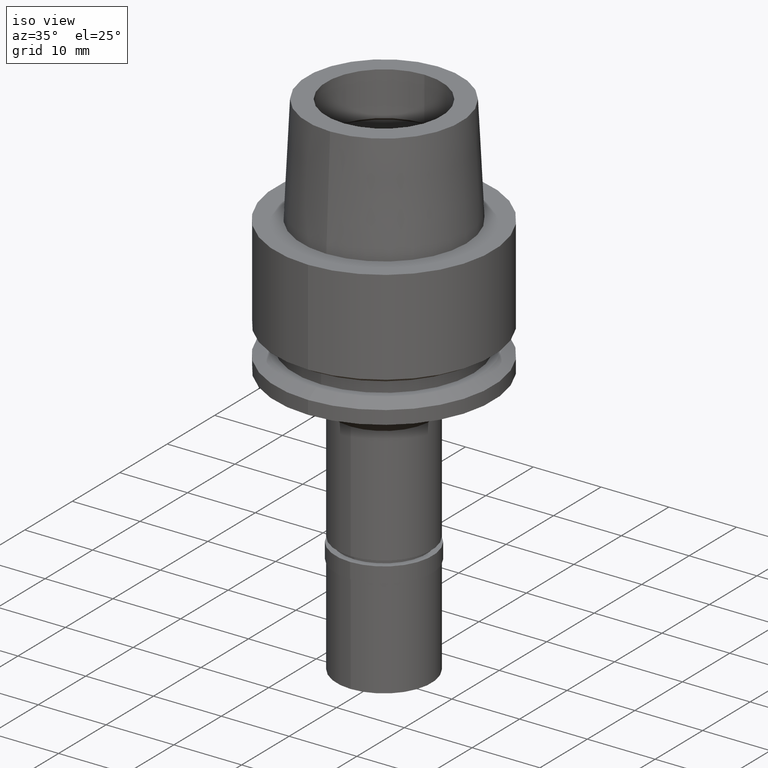
[diagram: clean part render]
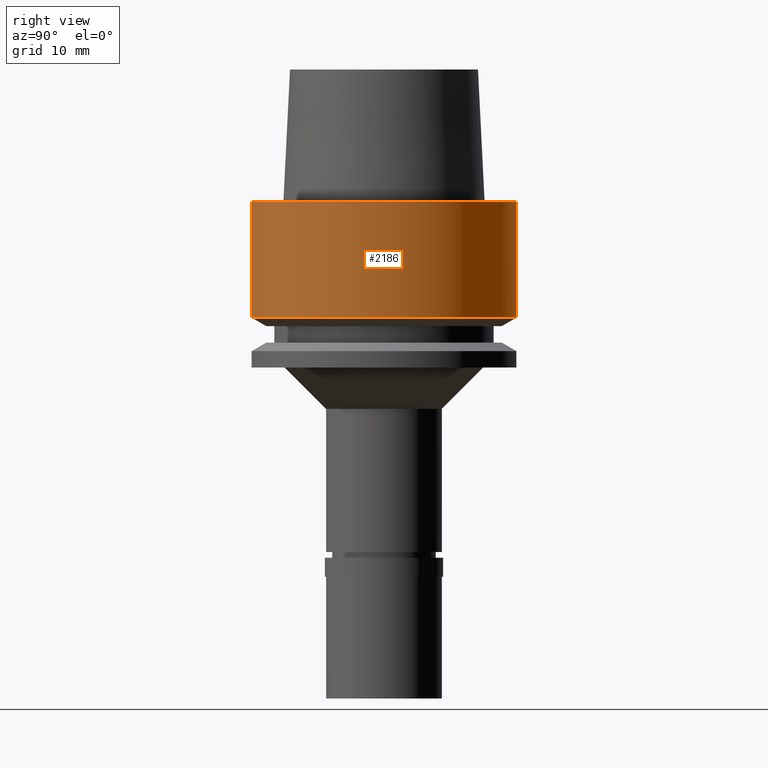
[diagram: tour spotlight — one face highlighted and labeled with its STEP entity id]
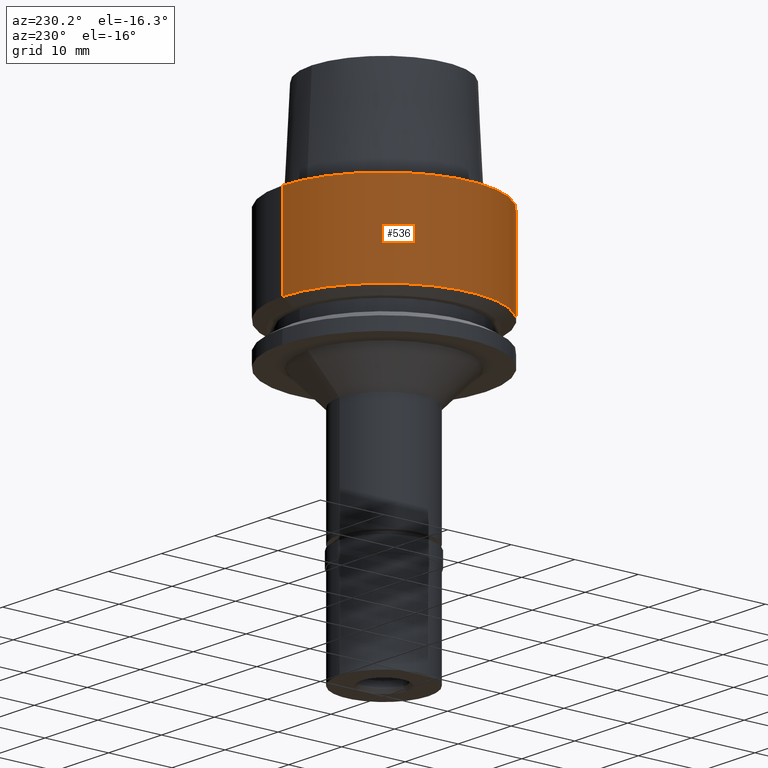
[diagram: tour spotlight — one face highlighted and labeled with its STEP entity id]
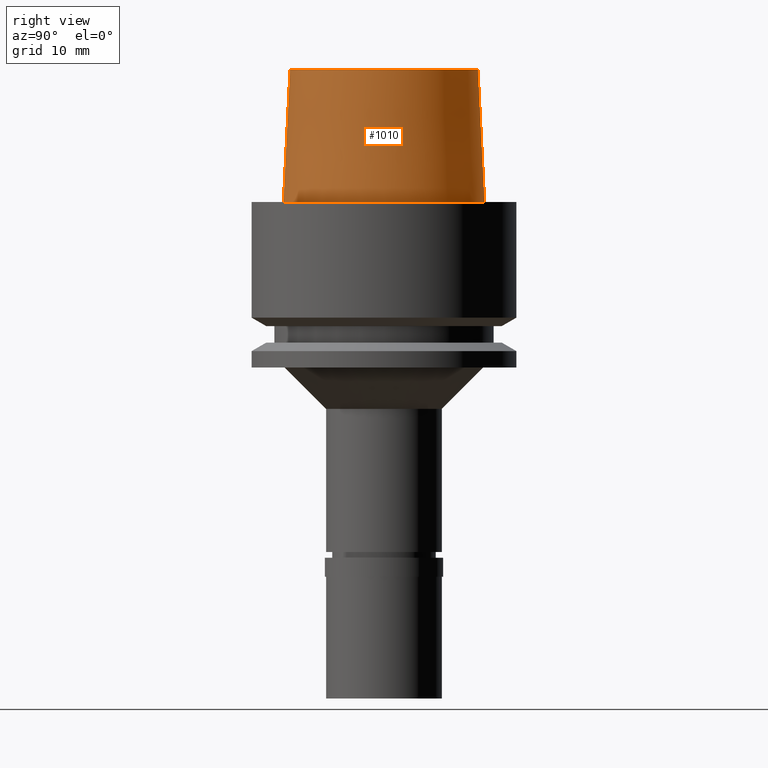
[diagram: tour spotlight — one face highlighted and labeled with its STEP entity id]
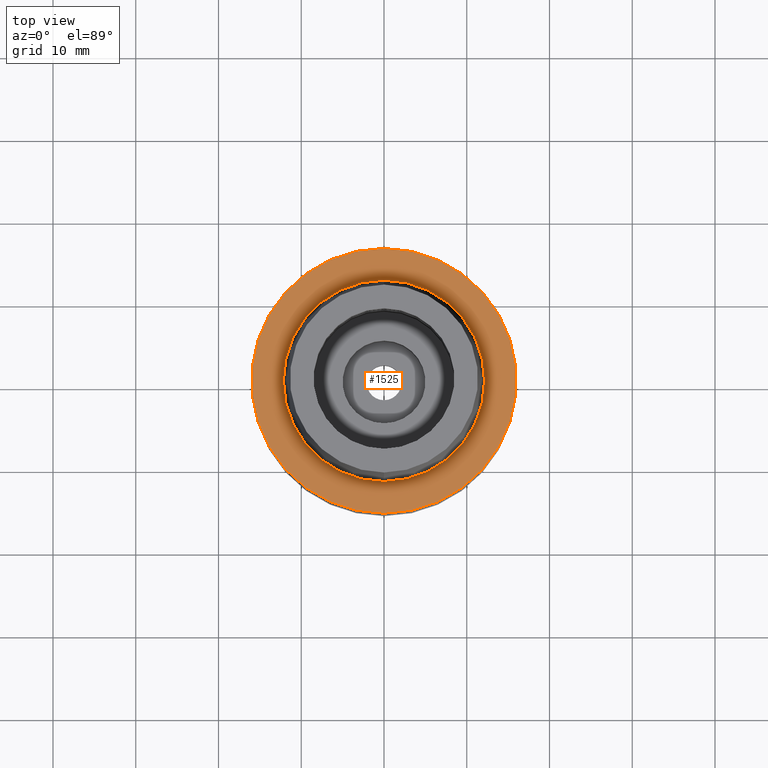
[diagram: tour spotlight — one face highlighted and labeled with its STEP entity id]
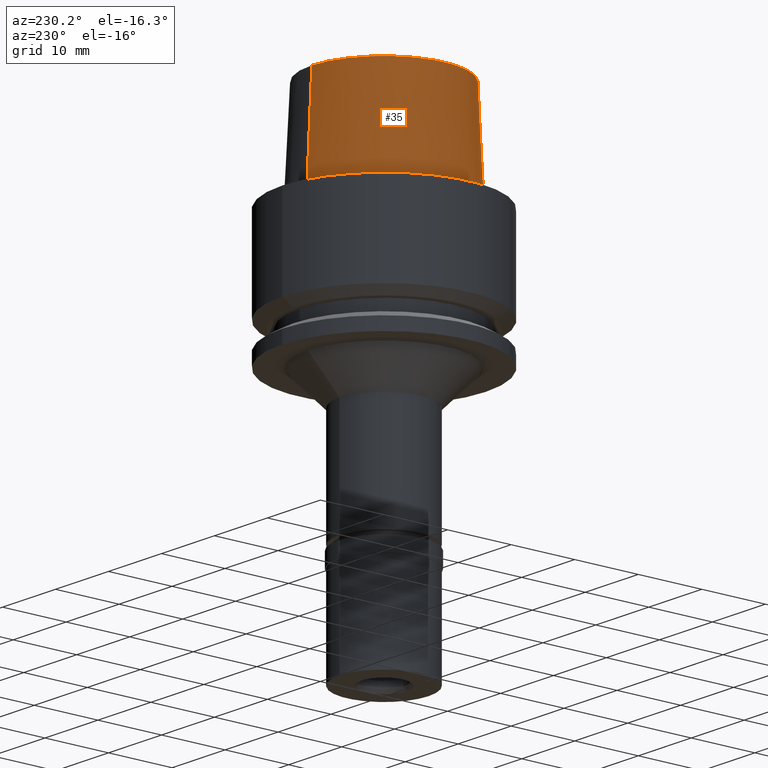
[diagram: tour spotlight — one face highlighted and labeled with its STEP entity id]
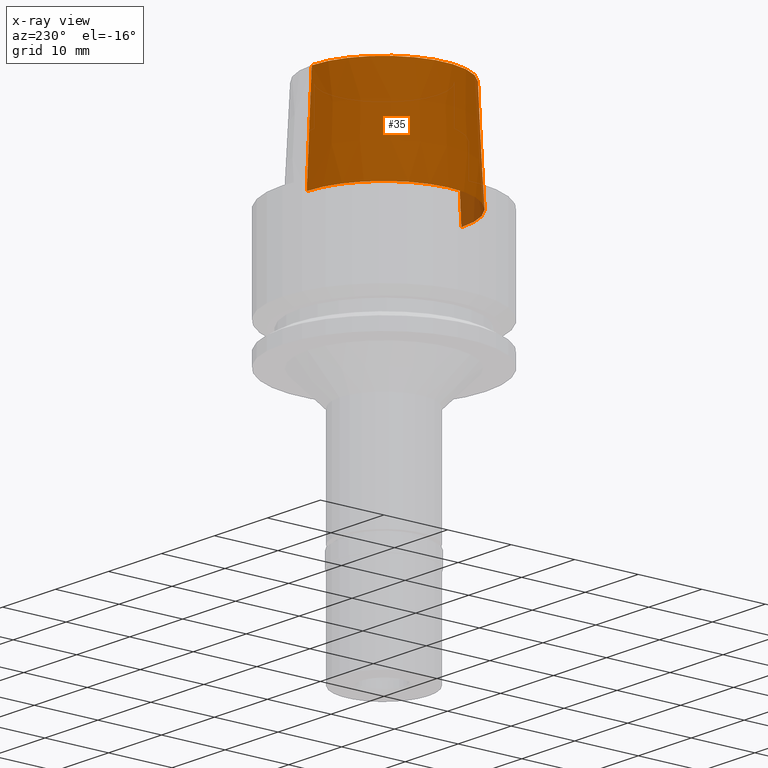
[diagram: x-ray of the same camera — body ghosted, this tour face saturated]
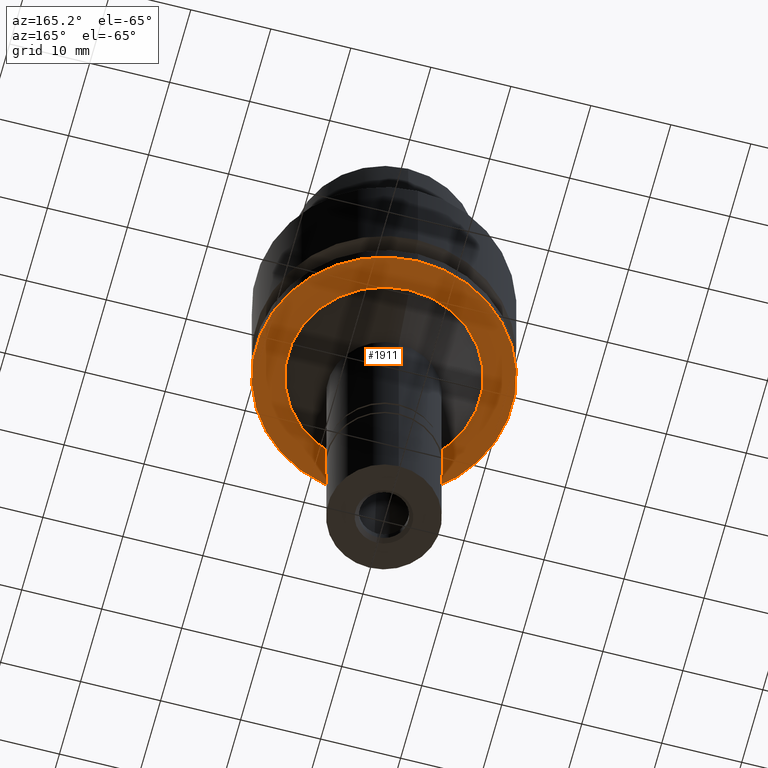
[diagram: tour spotlight — one face highlighted and labeled with its STEP entity id]
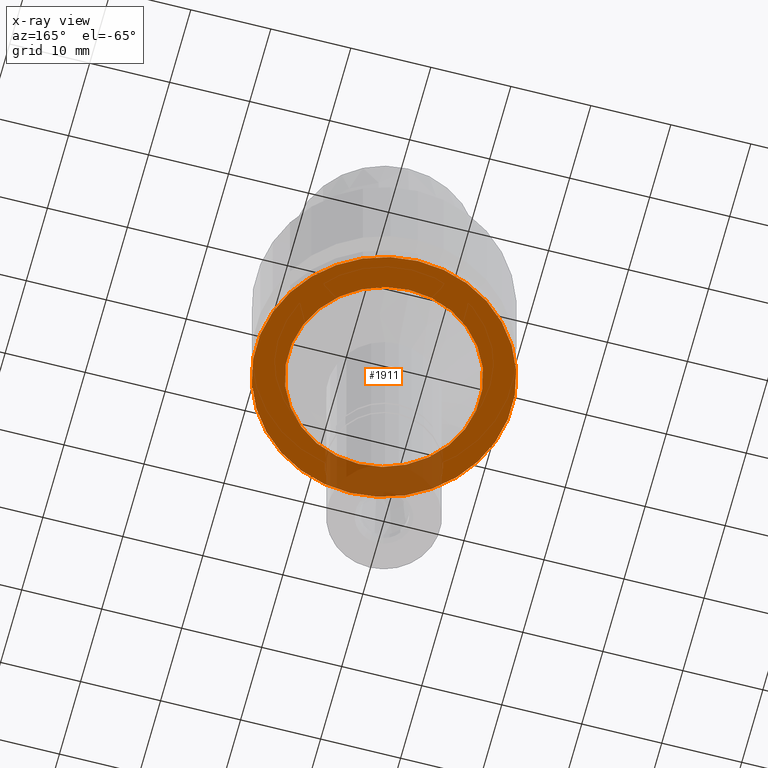
[diagram: x-ray of the same camera — body ghosted, this tour face saturated]
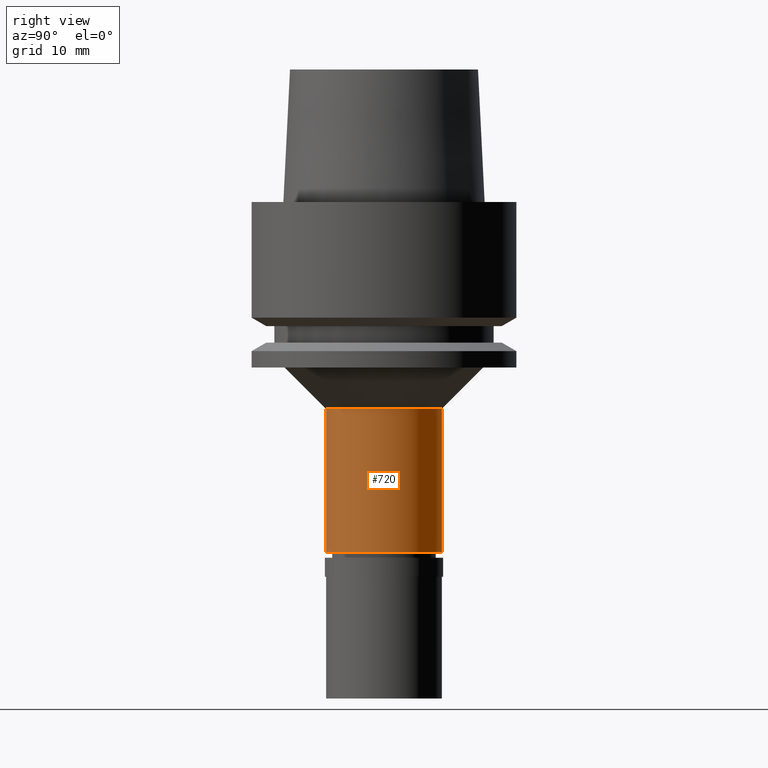
[diagram: tour spotlight — one face highlighted and labeled with its STEP entity id]
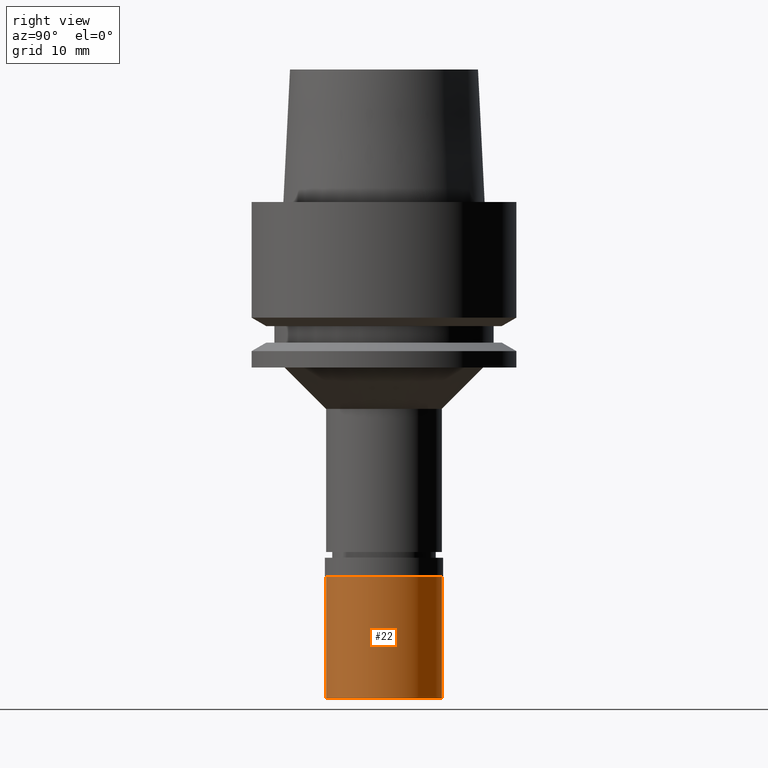
[diagram: tour spotlight — one face highlighted and labeled with its STEP entity id]
A machine part: a face-by-face anatomy tour. The part has 74 B-rep faces; the first image is the clean iso view, then the 8 largest visible faces are spotlighted one at a time (largest first), each with its STEP entity span.

Face 1 — right view, entity #2186. In plain terms, the highlighted cylindrical surface (partial cylindrical patch) has radius 16 mm, axis along (0, 0, 1).
Definition (entity closure, byte-faithful):
#188 = CARTESIAN_POINT ( 'NONE',  ( 0.0000000000000000000, 0.0000000000000000000, -13.97927405783999966 ) ) ;
#216 = DIRECTION ( 'NONE',  ( 0.0000000000000000000, 0.0000000000000000000, 1.000000000000000000 ) ) ;
#342 = CARTESIAN_POINT ( 'NONE',  ( 0.0000000000000000000, 0.0000000000000000000, -7.815970093360999808E-14 ) ) ;
#360 = CIRCLE ( 'NONE', #757, 16.00000000000000000 ) ;
#395 = DIRECTION ( 'NONE',  ( 0.0000000000000000000, 1.000000000000000000, 0.0000000000000000000 ) ) ;
#399 = EDGE_CURVE ( 'NONE', #2251, #1032, #2132, .T. ) ;
#509 = VERTEX_POINT ( 'NONE', #1955 ) ;
#526 = ORIENTED_EDGE ( 'NONE', *, *, #719, .T. ) ;
#706 = VECTOR ( 'NONE', #836, 1000.000000000000000 ) ;
#719 = EDGE_CURVE ( 'NONE', #509, #2251, #1167, .T. ) ;
#752 = ORIENTED_EDGE ( 'NONE', *, *, #2339, .F. ) ;
#757 = AXIS2_PLACEMENT_3D ( 'NONE', #188, #2459, #1883 ) ;
#836 = DIRECTION ( 'NONE',  ( 0.0000000000000000000, -6.772870976582999535E-14, -1.000000000000000000 ) ) ;
#1016 = FACE_OUTER_BOUND ( 'NONE', #2158, .T. ) ;
#1032 = VERTEX_POINT ( 'NONE', #1664 ) ;
#1044 = CYLINDRICAL_SURFACE ( 'NONE', #1094, 16.00000000000000000 ) ;
#1094 = AXIS2_PLACEMENT_3D ( 'NONE', #2488, #216, #395 ) ;
#1104 = ORIENTED_EDGE ( 'NONE', *, *, #399, .T. ) ;
#1167 = CIRCLE ( 'NONE', #1382, 16.00000000000000000 ) ;
#1306 = CARTESIAN_POINT ( 'NONE',  ( 0.0000000000000000000, 16.00000000000000000, -13.97927405783999966 ) ) ;
#1307 = DIRECTION ( 'NONE',  ( 0.0000000000000000000, 6.772870976582999535E-14, -1.000000000000000000 ) ) ;
#1382 = AXIS2_PLACEMENT_3D ( 'NONE', #342, #1412, #1862 ) ;
#1385 = VECTOR ( 'NONE', #1307, 1000.000000000000000 ) ;
#1412 = DIRECTION ( 'NONE',  ( 0.0000000000000000000, 0.0000000000000000000, -1.000000000000000000 ) ) ;
#1536 = VERTEX_POINT ( 'NONE', #1306 ) ;
#1664 = CARTESIAN_POINT ( 'NONE',  ( 0.0000000000000000000, -16.00000000000000000, -13.97927405783999966 ) ) ;
#1697 = CARTESIAN_POINT ( 'NONE',  ( 0.0000000000000000000, -16.00000000000000000, -7.815970093360999808E-14 ) ) ;
#1862 = DIRECTION ( 'NONE',  ( 0.0000000000000000000, 1.000000000000000000, 0.0000000000000000000 ) ) ;
#1883 = DIRECTION ( 'NONE',  ( 0.0000000000000000000, -1.000000000000000000, 0.0000000000000000000 ) ) ;
#1895 = CARTESIAN_POINT ( 'NONE',  ( 0.0000000000000000000, -16.00000000000000000, -5.210646728906999149E-14 ) ) ;
#1955 = CARTESIAN_POINT ( 'NONE',  ( 0.0000000000000000000, 16.00000000000000000, -7.815970093360999808E-14 ) ) ;
#2109 = LINE ( 'NONE', #2556, #706 ) ;
#2132 = LINE ( 'NONE', #1895, #1385 ) ;
#2158 = EDGE_LOOP ( 'NONE', ( #526, #1104, #2477, #752 ) ) ;
#2186 = ADVANCED_FACE ( 'NONE', ( #1016 ), #1044, .T. ) ;
#2251 = VERTEX_POINT ( 'NONE', #1697 ) ;
#2275 = EDGE_CURVE ( 'NONE', #1032, #1536, #360, .T. ) ;
#2339 = EDGE_CURVE ( 'NONE', #509, #1536, #2109, .T. ) ;
#2459 = DIRECTION ( 'NONE',  ( 0.0000000000000000000, 0.0000000000000000000, 1.000000000000000000 ) ) ;
#2477 = ORIENTED_EDGE ( 'NONE', *, *, #2275, .T. ) ;
#2488 = CARTESIAN_POINT ( 'NONE',  ( 0.0000000000000000000, 0.0000000000000000000, -59.60000000000000142 ) ) ;
#2556 = CARTESIAN_POINT ( 'NONE',  ( 0.0000000000000000000, 16.00000000000000000, -5.210646728906999149E-14 ) ) ;

Face 2 — auxiliary view, entity #536. In plain terms, the highlighted cylindrical surface (partial cylindrical patch) has radius 16 mm, axis along (0, 0, 1).
Definition (entity closure, byte-faithful):
#101 = CYLINDRICAL_SURFACE ( 'NONE', #2543, 16.00000000000000000 ) ;
#103 = AXIS2_PLACEMENT_3D ( 'NONE', #997, #2657, #1375 ) ;
#121 = EDGE_CURVE ( 'NONE', #2251, #509, #2506, .T. ) ;
#399 = EDGE_CURVE ( 'NONE', #2251, #1032, #2132, .T. ) ;
#415 = CIRCLE ( 'NONE', #2336, 16.00000000000000000 ) ;
#509 = VERTEX_POINT ( 'NONE', #1955 ) ;
#536 = ADVANCED_FACE ( 'NONE', ( #1121 ), #101, .T. ) ;
#706 = VECTOR ( 'NONE', #836, 1000.000000000000000 ) ;
#819 = DIRECTION ( 'NONE',  ( 0.0000000000000000000, 1.000000000000000000, 0.0000000000000000000 ) ) ;
#832 = ORIENTED_EDGE ( 'NONE', *, *, #399, .F. ) ;
#836 = DIRECTION ( 'NONE',  ( 0.0000000000000000000, -6.772870976582999535E-14, -1.000000000000000000 ) ) ;
#954 = DIRECTION ( 'NONE',  ( 0.0000000000000000000, 1.000000000000000000, 0.0000000000000000000 ) ) ;
#984 = ORIENTED_EDGE ( 'NONE', *, *, #2339, .T. ) ;
#997 = CARTESIAN_POINT ( 'NONE',  ( 0.0000000000000000000, 0.0000000000000000000, -7.815970093360999808E-14 ) ) ;
#1032 = VERTEX_POINT ( 'NONE', #1664 ) ;
#1121 = FACE_OUTER_BOUND ( 'NONE', #2138, .T. ) ;
#1214 = EDGE_CURVE ( 'NONE', #1536, #1032, #415, .T. ) ;
#1254 = ORIENTED_EDGE ( 'NONE', *, *, #1214, .T. ) ;
#1306 = CARTESIAN_POINT ( 'NONE',  ( 0.0000000000000000000, 16.00000000000000000, -13.97927405783999966 ) ) ;
#1307 = DIRECTION ( 'NONE',  ( 0.0000000000000000000, 6.772870976582999535E-14, -1.000000000000000000 ) ) ;
#1309 = ORIENTED_EDGE ( 'NONE', *, *, #121, .T. ) ;
#1375 = DIRECTION ( 'NONE',  ( 0.0000000000000000000, -1.000000000000000000, 0.0000000000000000000 ) ) ;
#1385 = VECTOR ( 'NONE', #1307, 1000.000000000000000 ) ;
#1536 = VERTEX_POINT ( 'NONE', #1306 ) ;
#1644 = DIRECTION ( 'NONE',  ( 0.0000000000000000000, 0.0000000000000000000, 1.000000000000000000 ) ) ;
#1664 = CARTESIAN_POINT ( 'NONE',  ( 0.0000000000000000000, -16.00000000000000000, -13.97927405783999966 ) ) ;
#1697 = CARTESIAN_POINT ( 'NONE',  ( 0.0000000000000000000, -16.00000000000000000, -7.815970093360999808E-14 ) ) ;
#1895 = CARTESIAN_POINT ( 'NONE',  ( 0.0000000000000000000, -16.00000000000000000, -5.210646728906999149E-14 ) ) ;
#1955 = CARTESIAN_POINT ( 'NONE',  ( 0.0000000000000000000, 16.00000000000000000, -7.815970093360999808E-14 ) ) ;
#2109 = LINE ( 'NONE', #2556, #706 ) ;
#2132 = LINE ( 'NONE', #1895, #1385 ) ;
#2138 = EDGE_LOOP ( 'NONE', ( #1254, #832, #1309, #984 ) ) ;
#2206 = CARTESIAN_POINT ( 'NONE',  ( 0.0000000000000000000, 0.0000000000000000000, -59.60000000000000142 ) ) ;
#2251 = VERTEX_POINT ( 'NONE', #1697 ) ;
#2261 = CARTESIAN_POINT ( 'NONE',  ( 0.0000000000000000000, 0.0000000000000000000, -13.97927405783999966 ) ) ;
#2336 = AXIS2_PLACEMENT_3D ( 'NONE', #2261, #1644, #819 ) ;
#2339 = EDGE_CURVE ( 'NONE', #509, #1536, #2109, .T. ) ;
#2506 = CIRCLE ( 'NONE', #103, 16.00000000000000000 ) ;
#2543 = AXIS2_PLACEMENT_3D ( 'NONE', #2206, #2557, #954 ) ;
#2556 = CARTESIAN_POINT ( 'NONE',  ( 0.0000000000000000000, 16.00000000000000000, -5.210646728906999149E-14 ) ) ;
#2557 = DIRECTION ( 'NONE',  ( 0.0000000000000000000, 0.0000000000000000000, 1.000000000000000000 ) ) ;
#2657 = DIRECTION ( 'NONE',  ( 0.0000000000000000000, 0.0000000000000000000, -1.000000000000000000 ) ) ;

Face 3 — right view, entity #1010. In plain terms, the highlighted conical surface has half-angle 2.862 deg.
Definition (entity closure, byte-faithful):
#144 = FACE_OUTER_BOUND ( 'NONE', #1313, .T. ) ;
#198 = CIRCLE ( 'NONE', #1557, 12.15999970738999991 ) ;
#269 = CARTESIAN_POINT ( 'NONE',  ( 0.0000000000000000000, 11.36000117044000035, 16.00000000000000000 ) ) ;
#271 = CARTESIAN_POINT ( 'NONE',  ( 0.0000000000000000000, 0.0000000000000000000, 2.557953848736000191E-13 ) ) ;
#289 = DIRECTION ( 'NONE',  ( 0.0000000000000000000, 1.000000000000000000, 0.0000000000000000000 ) ) ;
#299 = DIRECTION ( 'NONE',  ( 0.0000000000000000000, 0.04993752584492938684, -0.9987523434327887362 ) ) ;
#321 = CARTESIAN_POINT ( 'NONE',  ( 0.0000000000000000000, -11.36000117044000035, 16.00000000000000000 ) ) ;
#421 = EDGE_CURVE ( 'NONE', #1927, #2318, #1836, .T. ) ;
#439 = CARTESIAN_POINT ( 'NONE',  ( 0.0000000000000000000, -12.15999970738999991, 1.705302565823999875E-13 ) ) ;
#481 = CARTESIAN_POINT ( 'NONE',  ( 0.0000000000000000000, 0.0000000000000000000, 16.00000000000000000 ) ) ;
#486 = ORIENTED_EDGE ( 'NONE', *, *, #591, .T. ) ;
#508 = ORIENTED_EDGE ( 'NONE', *, *, #885, .T. ) ;
#513 = CARTESIAN_POINT ( 'NONE',  ( 0.0000000000000000000, 11.36000117044999946, 16.00000000000000000 ) ) ;
#591 = EDGE_CURVE ( 'NONE', #2318, #1489, #1337, .T. ) ;
#721 = DIRECTION ( 'NONE',  ( 0.0000000000000000000, -0.04993752584492938684, -0.9987523434327887362 ) ) ;
#737 = DIRECTION ( 'NONE',  ( 0.0000000000000000000, 0.0000000000000000000, 1.000000000000000000 ) ) ;
#885 = EDGE_CURVE ( 'NONE', #1489, #1764, #198, .T. ) ;
#903 = DIRECTION ( 'NONE',  ( 0.0000000000000000000, 0.0000000000000000000, -1.000000000000000000 ) ) ;
#1010 = ADVANCED_FACE ( 'NONE', ( #144 ), #1388, .T. ) ;
#1275 = CARTESIAN_POINT ( 'NONE',  ( 0.0000000000000000000, 0.0000000000000000000, 8.000000000000000000 ) ) ;
#1313 = EDGE_LOOP ( 'NONE', ( #2462, #486, #508, #2574 ) ) ;
#1316 = LINE ( 'NONE', #269, #2085 ) ;
#1337 = LINE ( 'NONE', #321, #2170 ) ;
#1388 = CONICAL_SURFACE ( 'NONE', #2017, 11.76000043892000058, 0.04995830450907576964 ) ;
#1436 = DIRECTION ( 'NONE',  ( 0.0000000000000000000, -1.000000000000000000, 0.0000000000000000000 ) ) ;
#1448 = DIRECTION ( 'NONE',  ( 0.0000000000000000000, 0.0000000000000000000, -1.000000000000000000 ) ) ;
#1489 = VERTEX_POINT ( 'NONE', #439 ) ;
#1557 = AXIS2_PLACEMENT_3D ( 'NONE', #271, #737, #1951 ) ;
#1764 = VERTEX_POINT ( 'NONE', #2235 ) ;
#1836 = CIRCLE ( 'NONE', #2467, 11.36000117044999946 ) ;
#1845 = CARTESIAN_POINT ( 'NONE',  ( 0.0000000000000000000, -11.36000117044999946, 16.00000000000000000 ) ) ;
#1927 = VERTEX_POINT ( 'NONE', #513 ) ;
#1951 = DIRECTION ( 'NONE',  ( 0.0000000000000000000, -1.000000000000000000, 0.0000000000000000000 ) ) ;
#2017 = AXIS2_PLACEMENT_3D ( 'NONE', #1275, #1448, #1436 ) ;
#2085 = VECTOR ( 'NONE', #299, 999.9999999999998863 ) ;
#2170 = VECTOR ( 'NONE', #721, 999.9999999999998863 ) ;
#2235 = CARTESIAN_POINT ( 'NONE',  ( 0.0000000000000000000, 12.15999970738999991, 1.705302565823999875E-13 ) ) ;
#2318 = VERTEX_POINT ( 'NONE', #1845 ) ;
#2462 = ORIENTED_EDGE ( 'NONE', *, *, #421, .T. ) ;
#2467 = AXIS2_PLACEMENT_3D ( 'NONE', #481, #903, #289 ) ;
#2492 = EDGE_CURVE ( 'NONE', #1927, #1764, #1316, .T. ) ;
#2574 = ORIENTED_EDGE ( 'NONE', *, *, #2492, .F. ) ;

Face 4 — top view, entity #1525. In plain terms, the highlighted planar face has unit normal (0, 0, 1).
Definition (entity closure, byte-faithful):
#103 = AXIS2_PLACEMENT_3D ( 'NONE', #997, #2657, #1375 ) ;
#121 = EDGE_CURVE ( 'NONE', #2251, #509, #2506, .T. ) ;
#198 = CIRCLE ( 'NONE', #1557, 12.15999970738999991 ) ;
#221 = PLANE ( 'NONE',  #639 ) ;
#271 = CARTESIAN_POINT ( 'NONE',  ( 0.0000000000000000000, 0.0000000000000000000, 2.557953848736000191E-13 ) ) ;
#342 = CARTESIAN_POINT ( 'NONE',  ( 0.0000000000000000000, 0.0000000000000000000, -7.815970093360999808E-14 ) ) ;
#361 = ORIENTED_EDGE ( 'NONE', *, *, #885, .F. ) ;
#439 = CARTESIAN_POINT ( 'NONE',  ( 0.0000000000000000000, -12.15999970738999991, 1.705302565823999875E-13 ) ) ;
#455 = DIRECTION ( 'NONE',  ( 0.0000000000000000000, 0.0000000000000000000, 1.000000000000000000 ) ) ;
#467 = FACE_BOUND ( 'NONE', #1137, .T. ) ;
#509 = VERTEX_POINT ( 'NONE', #1955 ) ;
#639 = AXIS2_PLACEMENT_3D ( 'NONE', #1082, #455, #2121 ) ;
#708 = ORIENTED_EDGE ( 'NONE', *, *, #1708, .F. ) ;
#719 = EDGE_CURVE ( 'NONE', #509, #2251, #1167, .T. ) ;
#737 = DIRECTION ( 'NONE',  ( 0.0000000000000000000, 0.0000000000000000000, 1.000000000000000000 ) ) ;
#825 = CIRCLE ( 'NONE', #1702, 12.15999970738999991 ) ;
#875 = EDGE_LOOP ( 'NONE', ( #1914, #2398 ) ) ;
#885 = EDGE_CURVE ( 'NONE', #1489, #1764, #198, .T. ) ;
#976 = DIRECTION ( 'NONE',  ( 0.0000000000000000000, 1.000000000000000000, 0.0000000000000000000 ) ) ;
#997 = CARTESIAN_POINT ( 'NONE',  ( 0.0000000000000000000, 0.0000000000000000000, -7.815970093360999808E-14 ) ) ;
#1082 = CARTESIAN_POINT ( 'NONE',  ( 0.0000000000000000000, 0.0000000000000000000, 0.0000000000000000000 ) ) ;
#1137 = EDGE_LOOP ( 'NONE', ( #708, #361 ) ) ;
#1167 = CIRCLE ( 'NONE', #1382, 16.00000000000000000 ) ;
#1268 = FACE_OUTER_BOUND ( 'NONE', #875, .T. ) ;
#1375 = DIRECTION ( 'NONE',  ( 0.0000000000000000000, -1.000000000000000000, 0.0000000000000000000 ) ) ;
#1382 = AXIS2_PLACEMENT_3D ( 'NONE', #342, #1412, #1862 ) ;
#1412 = DIRECTION ( 'NONE',  ( 0.0000000000000000000, 0.0000000000000000000, -1.000000000000000000 ) ) ;
#1489 = VERTEX_POINT ( 'NONE', #439 ) ;
#1525 = ADVANCED_FACE ( 'NONE', ( #1268, #467 ), #221, .T. ) ;
#1557 = AXIS2_PLACEMENT_3D ( 'NONE', #271, #737, #1951 ) ;
#1697 = CARTESIAN_POINT ( 'NONE',  ( 0.0000000000000000000, -16.00000000000000000, -7.815970093360999808E-14 ) ) ;
#1702 = AXIS2_PLACEMENT_3D ( 'NONE', #1839, #2651, #976 ) ;
#1708 = EDGE_CURVE ( 'NONE', #1764, #1489, #825, .T. ) ;
#1764 = VERTEX_POINT ( 'NONE', #2235 ) ;
#1839 = CARTESIAN_POINT ( 'NONE',  ( 0.0000000000000000000, 0.0000000000000000000, 2.557953848736000191E-13 ) ) ;
#1862 = DIRECTION ( 'NONE',  ( 0.0000000000000000000, 1.000000000000000000, 0.0000000000000000000 ) ) ;
#1914 = ORIENTED_EDGE ( 'NONE', *, *, #719, .F. ) ;
#1951 = DIRECTION ( 'NONE',  ( 0.0000000000000000000, -1.000000000000000000, 0.0000000000000000000 ) ) ;
#1955 = CARTESIAN_POINT ( 'NONE',  ( 0.0000000000000000000, 16.00000000000000000, -7.815970093360999808E-14 ) ) ;
#2121 = DIRECTION ( 'NONE',  ( 1.000000000000000000, 0.0000000000000000000, 0.0000000000000000000 ) ) ;
#2235 = CARTESIAN_POINT ( 'NONE',  ( 0.0000000000000000000, 12.15999970738999991, 1.705302565823999875E-13 ) ) ;
#2251 = VERTEX_POINT ( 'NONE', #1697 ) ;
#2398 = ORIENTED_EDGE ( 'NONE', *, *, #121, .F. ) ;
#2506 = CIRCLE ( 'NONE', #103, 16.00000000000000000 ) ;
#2651 = DIRECTION ( 'NONE',  ( 0.0000000000000000000, 0.0000000000000000000, 1.000000000000000000 ) ) ;
#2657 = DIRECTION ( 'NONE',  ( 0.0000000000000000000, 0.0000000000000000000, -1.000000000000000000 ) ) ;

Face 5 — auxiliary view, entity #35. An x-ray twin of the same camera follows (body ghosted, this face saturated) — the face is partly hidden behind the body. In plain terms, the highlighted conical surface has half-angle 2.862 deg.
Definition (entity closure, byte-faithful):
#35 = ADVANCED_FACE ( 'NONE', ( #2220 ), #369, .T. ) ;
#269 = CARTESIAN_POINT ( 'NONE',  ( 0.0000000000000000000, 11.36000117044000035, 16.00000000000000000 ) ) ;
#299 = DIRECTION ( 'NONE',  ( 0.0000000000000000000, 0.04993752584492938684, -0.9987523434327887362 ) ) ;
#321 = CARTESIAN_POINT ( 'NONE',  ( 0.0000000000000000000, -11.36000117044000035, 16.00000000000000000 ) ) ;
#346 = DIRECTION ( 'NONE',  ( 0.0000000000000000000, -1.000000000000000000, 0.0000000000000000000 ) ) ;
#369 = CONICAL_SURFACE ( 'NONE', #1604, 11.76000043892000058, 0.04995830450907576964 ) ;
#439 = CARTESIAN_POINT ( 'NONE',  ( 0.0000000000000000000, -12.15999970738999991, 1.705302565823999875E-13 ) ) ;
#492 = EDGE_LOOP ( 'NONE', ( #949, #2533, #691, #1859 ) ) ;
#513 = CARTESIAN_POINT ( 'NONE',  ( 0.0000000000000000000, 11.36000117044999946, 16.00000000000000000 ) ) ;
#591 = EDGE_CURVE ( 'NONE', #2318, #1489, #1337, .T. ) ;
#691 = ORIENTED_EDGE ( 'NONE', *, *, #1687, .T. ) ;
#721 = DIRECTION ( 'NONE',  ( 0.0000000000000000000, -0.04993752584492938684, -0.9987523434327887362 ) ) ;
#789 = DIRECTION ( 'NONE',  ( 0.0000000000000000000, 0.0000000000000000000, -1.000000000000000000 ) ) ;
#825 = CIRCLE ( 'NONE', #1702, 12.15999970738999991 ) ;
#826 = CARTESIAN_POINT ( 'NONE',  ( 0.0000000000000000000, 0.0000000000000000000, 16.00000000000000000 ) ) ;
#949 = ORIENTED_EDGE ( 'NONE', *, *, #1708, .T. ) ;
#971 = CARTESIAN_POINT ( 'NONE',  ( 0.0000000000000000000, 0.0000000000000000000, 8.000000000000000000 ) ) ;
#976 = DIRECTION ( 'NONE',  ( 0.0000000000000000000, 1.000000000000000000, 0.0000000000000000000 ) ) ;
#1230 = DIRECTION ( 'NONE',  ( 0.0000000000000000000, -1.000000000000000000, 0.0000000000000000000 ) ) ;
#1256 = AXIS2_PLACEMENT_3D ( 'NONE', #826, #1874, #1230 ) ;
#1316 = LINE ( 'NONE', #269, #2085 ) ;
#1337 = LINE ( 'NONE', #321, #2170 ) ;
#1489 = VERTEX_POINT ( 'NONE', #439 ) ;
#1604 = AXIS2_PLACEMENT_3D ( 'NONE', #971, #789, #346 ) ;
#1687 = EDGE_CURVE ( 'NONE', #2318, #1927, #2136, .T. ) ;
#1702 = AXIS2_PLACEMENT_3D ( 'NONE', #1839, #2651, #976 ) ;
#1708 = EDGE_CURVE ( 'NONE', #1764, #1489, #825, .T. ) ;
#1764 = VERTEX_POINT ( 'NONE', #2235 ) ;
#1839 = CARTESIAN_POINT ( 'NONE',  ( 0.0000000000000000000, 0.0000000000000000000, 2.557953848736000191E-13 ) ) ;
#1845 = CARTESIAN_POINT ( 'NONE',  ( 0.0000000000000000000, -11.36000117044999946, 16.00000000000000000 ) ) ;
#1859 = ORIENTED_EDGE ( 'NONE', *, *, #2492, .T. ) ;
#1874 = DIRECTION ( 'NONE',  ( 0.0000000000000000000, 0.0000000000000000000, -1.000000000000000000 ) ) ;
#1927 = VERTEX_POINT ( 'NONE', #513 ) ;
#2085 = VECTOR ( 'NONE', #299, 999.9999999999998863 ) ;
#2136 = CIRCLE ( 'NONE', #1256, 11.36000117044999946 ) ;
#2170 = VECTOR ( 'NONE', #721, 999.9999999999998863 ) ;
#2220 = FACE_OUTER_BOUND ( 'NONE', #492, .T. ) ;
#2235 = CARTESIAN_POINT ( 'NONE',  ( 0.0000000000000000000, 12.15999970738999991, 1.705302565823999875E-13 ) ) ;
#2318 = VERTEX_POINT ( 'NONE', #1845 ) ;
#2492 = EDGE_CURVE ( 'NONE', #1927, #1764, #1316, .T. ) ;
#2533 = ORIENTED_EDGE ( 'NONE', *, *, #591, .F. ) ;
#2651 = DIRECTION ( 'NONE',  ( 0.0000000000000000000, 0.0000000000000000000, 1.000000000000000000 ) ) ;

Face 6 — auxiliary view, entity #1911. An x-ray twin of the same camera follows (body ghosted, this face saturated) — the face is partly hidden behind the body. In plain terms, the highlighted planar face has unit normal (0, 0, 1).
Definition (entity closure, byte-faithful):
#45 = CARTESIAN_POINT ( 'NONE',  ( 0.0000000000000000000, 0.0000000000000000000, -20.00000000000000000 ) ) ;
#52 = ORIENTED_EDGE ( 'NONE', *, *, #1688, .F. ) ;
#116 = CIRCLE ( 'NONE', #419, 12.00000000000000000 ) ;
#117 = EDGE_LOOP ( 'NONE', ( #1341, #1580 ) ) ;
#139 = FACE_OUTER_BOUND ( 'NONE', #117, .T. ) ;
#175 = CARTESIAN_POINT ( 'NONE',  ( 0.0000000000000000000, -16.00000000000000000, -20.00000000000000000 ) ) ;
#181 = EDGE_CURVE ( 'NONE', #2388, #2184, #2009, .T. ) ;
#211 = VERTEX_POINT ( 'NONE', #1158 ) ;
#341 = CARTESIAN_POINT ( 'NONE',  ( 0.0000000000000000000, 0.0000000000000000000, -20.00000000000000000 ) ) ;
#345 = DIRECTION ( 'NONE',  ( 0.0000000000000000000, 0.0000000000000000000, 1.000000000000000000 ) ) ;
#356 = CARTESIAN_POINT ( 'NONE',  ( 0.0000000000000000000, 0.0000000000000000000, -20.00000000000000000 ) ) ;
#419 = AXIS2_PLACEMENT_3D ( 'NONE', #45, #669, #1514 ) ;
#437 = DIRECTION ( 'NONE',  ( 0.0000000000000000000, -1.000000000000000000, 0.0000000000000000000 ) ) ;
#552 = AXIS2_PLACEMENT_3D ( 'NONE', #2494, #1049, #437 ) ;
#554 = CIRCLE ( 'NONE', #552, 16.00000000000000000 ) ;
#669 = DIRECTION ( 'NONE',  ( 0.0000000000000000000, 0.0000000000000000000, -1.000000000000000000 ) ) ;
#692 = ORIENTED_EDGE ( 'NONE', *, *, #1565, .F. ) ;
#748 = DIRECTION ( 'NONE',  ( 0.0000000000000000000, 0.0000000000000000000, 1.000000000000000000 ) ) ;
#777 = PLANE ( 'NONE',  #1844 ) ;
#1003 = DIRECTION ( 'NONE',  ( 0.0000000000000000000, 0.0000000000000000000, -1.000000000000000000 ) ) ;
#1049 = DIRECTION ( 'NONE',  ( 0.0000000000000000000, 0.0000000000000000000, 1.000000000000000000 ) ) ;
#1071 = EDGE_CURVE ( 'NONE', #2184, #2388, #554, .T. ) ;
#1158 = CARTESIAN_POINT ( 'NONE',  ( 0.0000000000000000000, -12.00000000000000000, -20.00000000000000000 ) ) ;
#1180 = DIRECTION ( 'NONE',  ( 0.0000000000000000000, 1.000000000000000000, 0.0000000000000000000 ) ) ;
#1198 = DIRECTION ( 'NONE',  ( 0.0000000000000000000, 1.000000000000000000, 0.0000000000000000000 ) ) ;
#1340 = VERTEX_POINT ( 'NONE', #1854 ) ;
#1341 = ORIENTED_EDGE ( 'NONE', *, *, #181, .F. ) ;
#1514 = DIRECTION ( 'NONE',  ( 0.0000000000000000000, -1.000000000000000000, 0.0000000000000000000 ) ) ;
#1565 = EDGE_CURVE ( 'NONE', #211, #1340, #116, .T. ) ;
#1580 = ORIENTED_EDGE ( 'NONE', *, *, #1071, .F. ) ;
#1688 = EDGE_CURVE ( 'NONE', #1340, #211, #1970, .T. ) ;
#1692 = AXIS2_PLACEMENT_3D ( 'NONE', #356, #748, #1198 ) ;
#1802 = CARTESIAN_POINT ( 'NONE',  ( 0.0000000000000000000, 0.0000000000000000000, -20.00000000000000000 ) ) ;
#1844 = AXIS2_PLACEMENT_3D ( 'NONE', #1802, #345, #2382 ) ;
#1846 = FACE_BOUND ( 'NONE', #2323, .T. ) ;
#1854 = CARTESIAN_POINT ( 'NONE',  ( 0.0000000000000000000, 12.00000000000000000, -20.00000000000000000 ) ) ;
#1911 = ADVANCED_FACE ( 'NONE', ( #139, #1846 ), #777, .F. ) ;
#1970 = CIRCLE ( 'NONE', #2340, 12.00000000000000000 ) ;
#2009 = CIRCLE ( 'NONE', #1692, 16.00000000000000000 ) ;
#2184 = VERTEX_POINT ( 'NONE', #175 ) ;
#2323 = EDGE_LOOP ( 'NONE', ( #52, #692 ) ) ;
#2340 = AXIS2_PLACEMENT_3D ( 'NONE', #341, #1003, #1180 ) ;
#2382 = DIRECTION ( 'NONE',  ( 1.000000000000000000, 0.0000000000000000000, 0.0000000000000000000 ) ) ;
#2388 = VERTEX_POINT ( 'NONE', #2472 ) ;
#2472 = CARTESIAN_POINT ( 'NONE',  ( 0.0000000000000000000, 16.00000000000000000, -20.00000000000000000 ) ) ;
#2494 = CARTESIAN_POINT ( 'NONE',  ( 0.0000000000000000000, 0.0000000000000000000, -20.00000000000000000 ) ) ;

Face 7 — right view, entity #720. In plain terms, the highlighted cylindrical surface (partial cylindrical patch) has radius 7 mm, axis along (0, 0, 1).
Definition (entity closure, byte-faithful):
#135 = CYLINDRICAL_SURFACE ( 'NONE', #1611, 7.000000000000000000 ) ;
#150 = CIRCLE ( 'NONE', #450, 7.000000000000000000 ) ;
#154 = EDGE_CURVE ( 'NONE', #1792, #1509, #150, .T. ) ;
#222 = LINE ( 'NONE', #1260, #233 ) ;
#233 = VECTOR ( 'NONE', #2517, 1000.000000000000000 ) ;
#343 = EDGE_CURVE ( 'NONE', #651, #1509, #222, .T. ) ;
#450 = AXIS2_PLACEMENT_3D ( 'NONE', #2011, #2397, #556 ) ;
#556 = DIRECTION ( 'NONE',  ( 0.0000000000000000000, -1.000000000000000000, 0.0000000000000000000 ) ) ;
#651 = VERTEX_POINT ( 'NONE', #2218 ) ;
#720 = ADVANCED_FACE ( 'NONE', ( #1638 ), #135, .T. ) ;
#780 = CARTESIAN_POINT ( 'NONE',  ( 0.0000000000000000000, -7.000000000000000000, -25.00000000000000000 ) ) ;
#791 = LINE ( 'NONE', #780, #1335 ) ;
#888 = VERTEX_POINT ( 'NONE', #1758 ) ;
#914 = ORIENTED_EDGE ( 'NONE', *, *, #154, .T. ) ;
#915 = EDGE_LOOP ( 'NONE', ( #1350, #2347, #914, #922 ) ) ;
#922 = ORIENTED_EDGE ( 'NONE', *, *, #343, .F. ) ;
#977 = CARTESIAN_POINT ( 'NONE',  ( 0.0000000000000000000, 0.0000000000000000000, -59.60000000000000142 ) ) ;
#1052 = CARTESIAN_POINT ( 'NONE',  ( 0.0000000000000000000, 0.0000000000000000000, -25.00000000000000000 ) ) ;
#1128 = EDGE_CURVE ( 'NONE', #888, #1792, #791, .T. ) ;
#1260 = CARTESIAN_POINT ( 'NONE',  ( 0.0000000000000000000, 7.000000000000000000, -25.00000000000000000 ) ) ;
#1335 = VECTOR ( 'NONE', #2627, 1000.000000000000000 ) ;
#1350 = ORIENTED_EDGE ( 'NONE', *, *, #2227, .T. ) ;
#1429 = DIRECTION ( 'NONE',  ( 0.0000000000000000000, 1.000000000000000000, 0.0000000000000000000 ) ) ;
#1461 = CARTESIAN_POINT ( 'NONE',  ( 0.0000000000000000000, -7.000000000000000000, -42.29999999999999716 ) ) ;
#1509 = VERTEX_POINT ( 'NONE', #2307 ) ;
#1611 = AXIS2_PLACEMENT_3D ( 'NONE', #977, #1613, #2433 ) ;
#1613 = DIRECTION ( 'NONE',  ( 0.0000000000000000000, 0.0000000000000000000, 1.000000000000000000 ) ) ;
#1638 = FACE_OUTER_BOUND ( 'NONE', #915, .T. ) ;
#1642 = DIRECTION ( 'NONE',  ( 0.0000000000000000000, 0.0000000000000000000, -1.000000000000000000 ) ) ;
#1758 = CARTESIAN_POINT ( 'NONE',  ( 0.0000000000000000000, -7.000000000000000000, -25.00000000000000000 ) ) ;
#1792 = VERTEX_POINT ( 'NONE', #1461 ) ;
#2000 = AXIS2_PLACEMENT_3D ( 'NONE', #1052, #1642, #1429 ) ;
#2011 = CARTESIAN_POINT ( 'NONE',  ( 0.0000000000000000000, 0.0000000000000000000, -42.29999999999999716 ) ) ;
#2218 = CARTESIAN_POINT ( 'NONE',  ( 0.0000000000000000000, 7.000000000000000000, -25.00000000000000000 ) ) ;
#2227 = EDGE_CURVE ( 'NONE', #651, #888, #2320, .T. ) ;
#2307 = CARTESIAN_POINT ( 'NONE',  ( 0.0000000000000000000, 7.000000000000000000, -42.29999999999999716 ) ) ;
#2320 = CIRCLE ( 'NONE', #2000, 7.000000000000000000 ) ;
#2347 = ORIENTED_EDGE ( 'NONE', *, *, #1128, .T. ) ;
#2397 = DIRECTION ( 'NONE',  ( 0.0000000000000000000, 0.0000000000000000000, 1.000000000000000000 ) ) ;
#2433 = DIRECTION ( 'NONE',  ( 0.0000000000000000000, 1.000000000000000000, 0.0000000000000000000 ) ) ;
#2517 = DIRECTION ( 'NONE',  ( 0.0000000000000000000, 0.0000000000000000000, -1.000000000000000000 ) ) ;
#2627 = DIRECTION ( 'NONE',  ( 0.0000000000000000000, 0.0000000000000000000, -1.000000000000000000 ) ) ;

Face 8 — right view, entity #22. In plain terms, the highlighted cylindrical surface (partial cylindrical patch) has radius 7 mm, axis along (0, 0, 1).
Definition (entity closure, byte-faithful):
#22 = ADVANCED_FACE ( 'NONE', ( #2341 ), #1089, .T. ) ;
#56 = DIRECTION ( 'NONE',  ( 0.0000000000000000000, 1.000000000000000000, 0.0000000000000000000 ) ) ;
#164 = CARTESIAN_POINT ( 'NONE',  ( 0.0000000000000000000, -7.000000000000000000, -2.299999999999999822 ) ) ;
#272 = CIRCLE ( 'NONE', #374, 7.000000000000000000 ) ;
#310 = DIRECTION ( 'NONE',  ( 0.0000000000000000000, 0.0000000000000000000, -1.000000000000000000 ) ) ;
#344 = EDGE_CURVE ( 'NONE', #2012, #2348, #2688, .T. ) ;
#374 = AXIS2_PLACEMENT_3D ( 'NONE', #503, #1577, #1168 ) ;
#503 = CARTESIAN_POINT ( 'NONE',  ( 0.0000000000000000000, 0.0000000000000000000, -2.299999999999999822 ) ) ;
#563 = EDGE_CURVE ( 'NONE', #918, #1376, #272, .T. ) ;
#593 = AXIS2_PLACEMENT_3D ( 'NONE', #2308, #1063, #1296 ) ;
#650 = DIRECTION ( 'NONE',  ( 0.0000000000000000000, 0.0000000000000000000, 1.000000000000000000 ) ) ;
#682 = EDGE_LOOP ( 'NONE', ( #1572, #1284, #1800, #1132 ) ) ;
#859 = VECTOR ( 'NONE', #2108, 1000.000000000000000 ) ;
#918 = VERTEX_POINT ( 'NONE', #950 ) ;
#950 = CARTESIAN_POINT ( 'NONE',  ( 0.0000000000000000000, 7.000000000000000000, -2.299999999999999822 ) ) ;
#963 = LINE ( 'NONE', #2659, #1884 ) ;
#1039 = CARTESIAN_POINT ( 'NONE',  ( 0.0000000000000000000, 7.000000000000000000, -17.00000000000000000 ) ) ;
#1063 = DIRECTION ( 'NONE',  ( 0.0000000000000000000, 0.0000000000000000000, 1.000000000000000000 ) ) ;
#1089 = CYLINDRICAL_SURFACE ( 'NONE', #2464, 7.000000000000000000 ) ;
#1102 = EDGE_CURVE ( 'NONE', #1376, #2012, #963, .T. ) ;
#1132 = ORIENTED_EDGE ( 'NONE', *, *, #1773, .F. ) ;
#1168 = DIRECTION ( 'NONE',  ( 0.0000000000000000000, 1.000000000000000000, 0.0000000000000000000 ) ) ;
#1257 = LINE ( 'NONE', #1963, #859 ) ;
#1273 = CARTESIAN_POINT ( 'NONE',  ( 0.0000000000000000000, 0.0000000000000000000, -17.85000000000000142 ) ) ;
#1284 = ORIENTED_EDGE ( 'NONE', *, *, #1102, .T. ) ;
#1296 = DIRECTION ( 'NONE',  ( 0.0000000000000000000, -1.000000000000000000, 0.0000000000000000000 ) ) ;
#1376 = VERTEX_POINT ( 'NONE', #164 ) ;
#1572 = ORIENTED_EDGE ( 'NONE', *, *, #563, .T. ) ;
#1577 = DIRECTION ( 'NONE',  ( 0.0000000000000000000, 0.0000000000000000000, -1.000000000000000000 ) ) ;
#1773 = EDGE_CURVE ( 'NONE', #918, #2348, #1257, .T. ) ;
#1800 = ORIENTED_EDGE ( 'NONE', *, *, #344, .T. ) ;
#1884 = VECTOR ( 'NONE', #310, 1000.000000000000000 ) ;
#1963 = CARTESIAN_POINT ( 'NONE',  ( 0.0000000000000000000, 7.000000000000000000, -2.299999999999999822 ) ) ;
#2012 = VERTEX_POINT ( 'NONE', #2211 ) ;
#2108 = DIRECTION ( 'NONE',  ( 0.0000000000000000000, 0.0000000000000000000, -1.000000000000000000 ) ) ;
#2211 = CARTESIAN_POINT ( 'NONE',  ( 0.0000000000000000000, -7.000000000000000000, -17.00000000000000000 ) ) ;
#2308 = CARTESIAN_POINT ( 'NONE',  ( 0.0000000000000000000, 0.0000000000000000000, -17.00000000000000000 ) ) ;
#2341 = FACE_OUTER_BOUND ( 'NONE', #682, .T. ) ;
#2348 = VERTEX_POINT ( 'NONE', #1039 ) ;
#2464 = AXIS2_PLACEMENT_3D ( 'NONE', #1273, #650, #56 ) ;
#2659 = CARTESIAN_POINT ( 'NONE',  ( 0.0000000000000000000, -7.000000000000000000, -2.299999999999999822 ) ) ;
#2688 = CIRCLE ( 'NONE', #593, 7.000000000000000000 ) ;